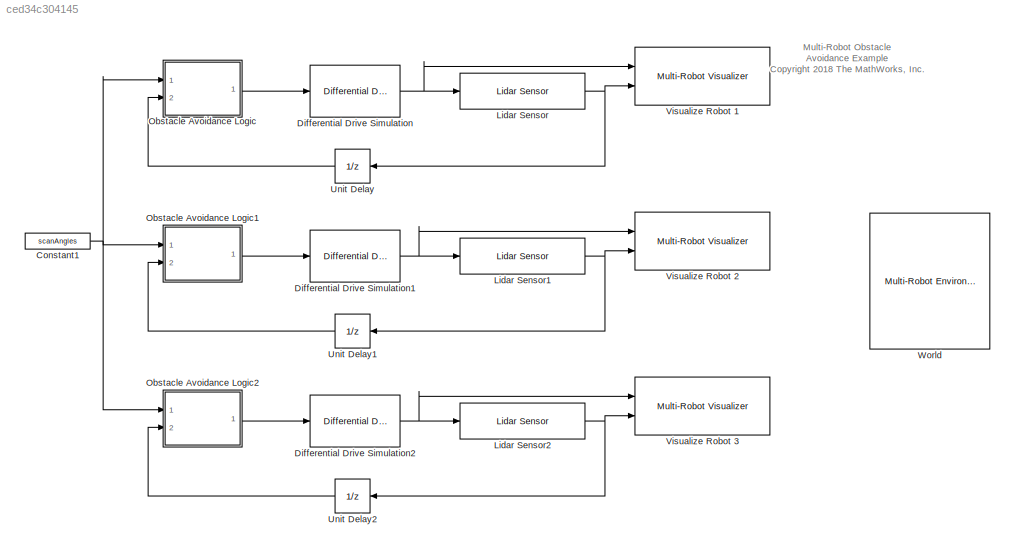
MODEL slx_ced34c304145
KIND model
CONFIG AbsTol = auto
CONFIG EnableMultiTasking = off
CONFIG FixedStep = sampleTime
CONFIG MaxStep = auto
CONFIG MinStep = auto
CONFIG PreLoadFcn = % Simulation parameters\nload exampleMap\nsampleTime = 0.05;\n\n% Robot parameters\nwheelRadius = 0.025;\nrobotRadius = 0.35;\n\n% Lidar parameters\nsensorOffset = [0,0];\nscanAngles = linspace(-pi/2,pi/2,9)';\nmaxRange = 5;
CONFIG RelTol = 1e-3
CONFIG SampleTimeConstraint = Unconstrained
CONFIG Solver = FixedStepAuto
CONFIG SolverName = FixedStepAuto
CONFIG StartTime = 0.0
CONFIG StopTime = inf
BLOCK [Constant] Constant1
  Value = scanAngles
BLOCK [Reference] Differential Drive Simulation  REF=mobileRoboticsLib/Kinematic Models/Differential Drive/Differential Drive Simulation
  Ports = [1, 1]
  SourceBlock = mobileRoboticsLib/Kinematic Models/Differential Drive/Differential Drive Simulation
  SourceProductName = Mobile Robotics Simulation Toolbox
  SourceType = Differential Drive Simulation
BLOCK [Reference] Differential Drive Simulation1  REF=mobileRoboticsLib/Kinematic Models/Differential Drive/Differential Drive Simulation
  Ports = [1, 1]
  SourceBlock = mobileRoboticsLib/Kinematic Models/Differential Drive/Differential Drive Simulation
  SourceProductName = Mobile Robotics Simulation Toolbox
  SourceType = Differential Drive Simulation
BLOCK [Reference] Differential Drive Simulation2  REF=mobileRoboticsLib/Kinematic Models/Differential Drive/Differential Drive Simulation
  Ports = [1, 1]
  SourceBlock = mobileRoboticsLib/Kinematic Models/Differential Drive/Differential Drive Simulation
  SourceProductName = Mobile Robotics Simulation Toolbox
  SourceType = Differential Drive Simulation
BLOCK [Reference] Lidar Sensor  REF=mobileRoboticsLib/Environments/Lidar Sensor
  Ports = [1, 1]
  SourceBlock = mobileRoboticsLib/Environments/Lidar Sensor
  SourceProductName = Mobile Robotics Simulation Toolbox
  SourceType = LidarSensor
BLOCK [Reference] Lidar Sensor1  REF=mobileRoboticsLib/Environments/Lidar Sensor
  Ports = [1, 1]
  SourceBlock = mobileRoboticsLib/Environments/Lidar Sensor
  SourceProductName = Mobile Robotics Simulation Toolbox
  SourceType = LidarSensor
BLOCK [Reference] Lidar Sensor2  REF=mobileRoboticsLib/Environments/Lidar Sensor
  Ports = [1, 1]
  SourceBlock = mobileRoboticsLib/Environments/Lidar Sensor
  SourceProductName = Mobile Robotics Simulation Toolbox
  SourceType = LidarSensor
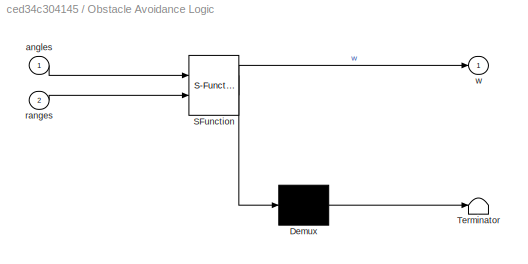
BLOCK [SubSystem] Obstacle Avoidance Logic
  ErrorFcn = Stateflow.Translate.translate
  PermitHierarchicalResolution = ExplicitOnly
  Ports = [2, 1]
  RequestExecContextInheritance = off
  SFBlockType = Chart
  TreatAsAtomicUnit = on
BLOCK [Demux] Obstacle Avoidance Logic/ Demux 
  Outputs = 1
  Ports = [1, 1]
BLOCK [S-Function] Obstacle Avoidance Logic/ SFunction 
  EnableBusSupport = on
  FunctionName = sf_sfun
  PortCounts = [2 2]
  Ports = [2, 2]
  SFcnIsStateOwnerBlock = off
  SFunctionDeploymentMode = off
  Tag = Stateflow S-Function mrsMultiRobotAvoidance 3
BLOCK [Terminator] Obstacle Avoidance Logic/ Terminator 
BLOCK [Inport] Obstacle Avoidance Logic/angles
  IconDisplay = Port number
BLOCK [Inport] Obstacle Avoidance Logic/ranges
  IconDisplay = Port number
  Port = 2
BLOCK [Outport] Obstacle Avoidance Logic/w
  IconDisplay = Port number
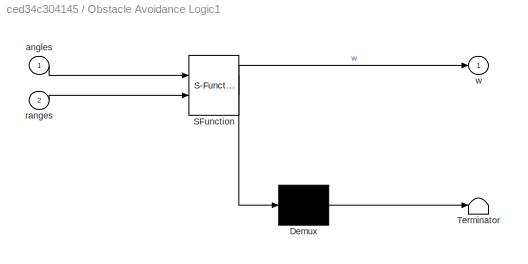
BLOCK [SubSystem] Obstacle Avoidance Logic1
  ErrorFcn = Stateflow.Translate.translate
  PermitHierarchicalResolution = ExplicitOnly
  Ports = [2, 1]
  RequestExecContextInheritance = off
  SFBlockType = Chart
  TreatAsAtomicUnit = on
BLOCK [Demux] Obstacle Avoidance Logic1/ Demux 
  Outputs = 1
  Ports = [1, 1]
BLOCK [S-Function] Obstacle Avoidance Logic1/ SFunction 
  EnableBusSupport = on
  FunctionName = sf_sfun
  PortCounts = [2 2]
  Ports = [2, 2]
  SFcnIsStateOwnerBlock = off
  SFunctionDeploymentMode = off
  Tag = Stateflow S-Function mrsMultiRobotAvoidance 1
BLOCK [Terminator] Obstacle Avoidance Logic1/ Terminator 
BLOCK [Inport] Obstacle Avoidance Logic1/angles
  IconDisplay = Port number
BLOCK [Inport] Obstacle Avoidance Logic1/ranges
  IconDisplay = Port number
  Port = 2
BLOCK [Outport] Obstacle Avoidance Logic1/w
  IconDisplay = Port number
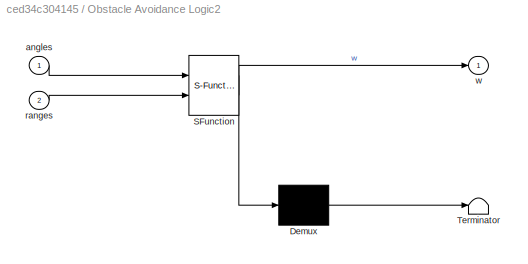
BLOCK [SubSystem] Obstacle Avoidance Logic2
  ErrorFcn = Stateflow.Translate.translate
  PermitHierarchicalResolution = ExplicitOnly
  Ports = [2, 1]
  RequestExecContextInheritance = off
  SFBlockType = Chart
  TreatAsAtomicUnit = on
BLOCK [Demux] Obstacle Avoidance Logic2/ Demux 
  Outputs = 1
  Ports = [1, 1]
BLOCK [S-Function] Obstacle Avoidance Logic2/ SFunction 
  EnableBusSupport = on
  FunctionName = sf_sfun
  PortCounts = [2 2]
  Ports = [2, 2]
  SFcnIsStateOwnerBlock = off
  SFunctionDeploymentMode = off
  Tag = Stateflow S-Function mrsMultiRobotAvoidance 2
BLOCK [Terminator] Obstacle Avoidance Logic2/ Terminator 
BLOCK [Inport] Obstacle Avoidance Logic2/angles
  IconDisplay = Port number
BLOCK [Inport] Obstacle Avoidance Logic2/ranges
  IconDisplay = Port number
  Port = 2
BLOCK [Outport] Obstacle Avoidance Logic2/w
  IconDisplay = Port number
BLOCK [UnitDelay] Unit Delay
  InputProcessing = Elements as channels (sample based)
  SampleTime = -1
BLOCK [UnitDelay] Unit Delay1
  InputProcessing = Elements as channels (sample based)
  SampleTime = -1
BLOCK [UnitDelay] Unit Delay2
  InputProcessing = Elements as channels (sample based)
  SampleTime = -1
BLOCK [Reference] Visualize Robot 1  REF=mobileRoboticsLib/Environments/Multi-Robot Visualizer
  Ports = [2]
  SourceBlock = mobileRoboticsLib/Environments/Multi-Robot Visualizer
  SourceProductName = Mobile Robotics Simulation Toolbox
  SourceType = Multi-Robot Visualizer
BLOCK [Reference] Visualize Robot 2  REF=mobileRoboticsLib/Environments/Multi-Robot Visualizer
  Ports = [2]
  SourceBlock = mobileRoboticsLib/Environments/Multi-Robot Visualizer
  SourceProductName = Mobile Robotics Simulation Toolbox
  SourceType = Multi-Robot Visualizer
BLOCK [Reference] Visualize Robot 3  REF=mobileRoboticsLib/Environments/Multi-Robot Visualizer
  Ports = [2]
  SourceBlock = mobileRoboticsLib/Environments/Multi-Robot Visualizer
  SourceProductName = Mobile Robotics Simulation Toolbox
  SourceType = Multi-Robot Visualizer
BLOCK [Reference] World  REF=mobileRoboticsLib/Environments/Multi-Robot Environment
  Ports = []
  SourceBlock = mobileRoboticsLib/Environments/Multi-Robot Environment
  SourceProductName = Mobile Robotics Simulation Toolbox
  SourceType = Multi-Robot Environment
ANNOTATION (root): Multi-Robot Obstacle Avoidance Example <copyright redacted>
NET Constant1:1 -> Obstacle Avoidance Logic1:1, Obstacle Avoidance Logic2:1, Obstacle Avoidance Logic:1
NET Differential Drive Simulation1:1 -> Lidar Sensor1:1, Visualize Robot 2:1
NET Differential Drive Simulation2:1 -> Lidar Sensor2:1, Visualize Robot 3:1
NET Differential Drive Simulation:1 -> Lidar Sensor:1, Visualize Robot 1:1
NET Lidar Sensor1:1 -> Unit Delay1:1, Visualize Robot 2:2
NET Lidar Sensor2:1 -> Unit Delay2:1, Visualize Robot 3:2
NET Lidar Sensor:1 -> Unit Delay:1, Visualize Robot 1:2
LINE Obstacle Avoidance Logic1:1 -> Differential Drive Simulation1:1
LINE Obstacle Avoidance Logic2:1 -> Differential Drive Simulation2:1
LINE Obstacle Avoidance Logic:1 -> Differential Drive Simulation:1
LINE Unit Delay1:1 -> Obstacle Avoidance Logic1:2
LINE Unit Delay2:1 -> Obstacle Avoidance Logic2:2
LINE Unit Delay:1 -> Obstacle Avoidance Logic:2
note: NET lines group one-source signal fan-out (src -> all destinations, sorted); 1:1 wires keep LINE
CHART Obstacle Avoidance 
Logic1 states=5 transitions=9
  STATE_LABEL 'MainState\nen,du:\nvalidIdx = ~isnan(ranges);\nvalidRanges = ranges(validIdx);\nvalidAngles = angles(validIdx);'
  STATE_LABEL 'Turn\nen,du:\navgAngle = mean(validAngles./validRanges);'
  STATE_LABEL 'Left\nen, du:\nw = [0;12.5];'
  STATE_LABEL 'Right\nen, du:\nw = [12.5;0];'
  STATE_LABEL '[avgAngle < 0]'
  STATE_LABEL '[after(1,sec) && ...\navgAngle > 0]'
  STATE_LABEL '[after(1,sec) && ...\navgAngle < 0]'
  STATE_LABEL 'GoStraight\nen:\nw = [25; 25];'
  STATE_LABEL '[any(validRanges<=1)]'
  STATE_LABEL '[all(validRanges>1)]'
  STATE_LABEL 'Turn\nen,du:\navgAngle = mean(validAngles./validRanges);'
  STATE_LABEL 'Left\nen, du:\nw = [0;12.5];'
  STATE_LABEL 'Right\nen, du:\nw = [12.5;0];'
  STATE_LABEL '[avgAngle < 0]'
  STATE_LABEL '[after(1,sec) && ...\navgAngle > 0]'
  STATE_LABEL '[after(1,sec) && ...\navgAngle < 0]'
  STATE_LABEL 'Left\nen, du:\nw = [0;12.5];'
  STATE_LABEL 'Right\nen, du:\nw = [12.5;0];'
  STATE_LABEL 'GoStraight\nen:\nw = [25; 25];'
CHART Obstacle Avoidance 
Logic2 states=5 transitions=9
  STATE_LABEL 'MainState\nen,du:\nvalidIdx = ~isnan(ranges);\nvalidRanges = ranges(validIdx);\nvalidAngles = angles(validIdx);'
  STATE_LABEL 'Turn\nen,du:\navgAngle = mean(validAngles./validRanges);'
  STATE_LABEL 'Left\nen, du:\nw = [0;12.5];'
  STATE_LABEL 'Right\nen, du:\nw = [12.5;0];'
  STATE_LABEL '[avgAngle < 0]'
  STATE_LABEL '[after(1,sec) && ...\navgAngle > 0]'
  STATE_LABEL '[after(1,sec) && ...\navgAngle < 0]'
  STATE_LABEL 'GoStraight\nen:\nw = [25; 25];'
  STATE_LABEL '[any(validRanges<=1)]'
  STATE_LABEL '[all(validRanges>1)]'
  STATE_LABEL 'Turn\nen,du:\navgAngle = mean(validAngles./validRanges);'
  STATE_LABEL 'Left\nen, du:\nw = [0;12.5];'
  STATE_LABEL 'Right\nen, du:\nw = [12.5;0];'
  STATE_LABEL '[avgAngle < 0]'
  STATE_LABEL '[after(1,sec) && ...\navgAngle > 0]'
  STATE_LABEL '[after(1,sec) && ...\navgAngle < 0]'
  STATE_LABEL 'Left\nen, du:\nw = [0;12.5];'
  STATE_LABEL 'Right\nen, du:\nw = [12.5;0];'
  STATE_LABEL 'GoStraight\nen:\nw = [25; 25];'
CHART Obstacle Avoidance 
Logic states=5 transitions=9
  STATE_LABEL 'MainState\nen,du:\nvalidIdx = ~isnan(ranges);\nvalidRanges = ranges(validIdx);\nvalidAngles = angles(validIdx);'
  STATE_LABEL 'Turn\nen,du:\navgAngle = mean(validAngles./validRanges);'
  STATE_LABEL 'Left\nen, du:\nw = [0;12.5];'
  STATE_LABEL 'Right\nen, du:\nw = [12.5;0];'
  STATE_LABEL '[avgAngle < 0]'
  STATE_LABEL '[after(1,sec) && ...\navgAngle > 0]'
  STATE_LABEL '[after(1,sec) && ...\navgAngle < 0]'
  STATE_LABEL 'GoStraight\nen:\nw = [25; 25];'
  STATE_LABEL '[any(validRanges<=1)]'
  STATE_LABEL '[all(validRanges>1)]'
  STATE_LABEL 'Turn\nen,du:\navgAngle = mean(validAngles./validRanges);'
  STATE_LABEL 'Left\nen, du:\nw = [0;12.5];'
  STATE_LABEL 'Right\nen, du:\nw = [12.5;0];'
  STATE_LABEL '[avgAngle < 0]'
  STATE_LABEL '[after(1,sec) && ...\navgAngle > 0]'
  STATE_LABEL '[after(1,sec) && ...\navgAngle < 0]'
  STATE_LABEL 'Left\nen, du:\nw = [0;12.5];'
  STATE_LABEL 'Right\nen, du:\nw = [12.5;0];'
  STATE_LABEL 'GoStraight\nen:\nw = [25; 25];'
